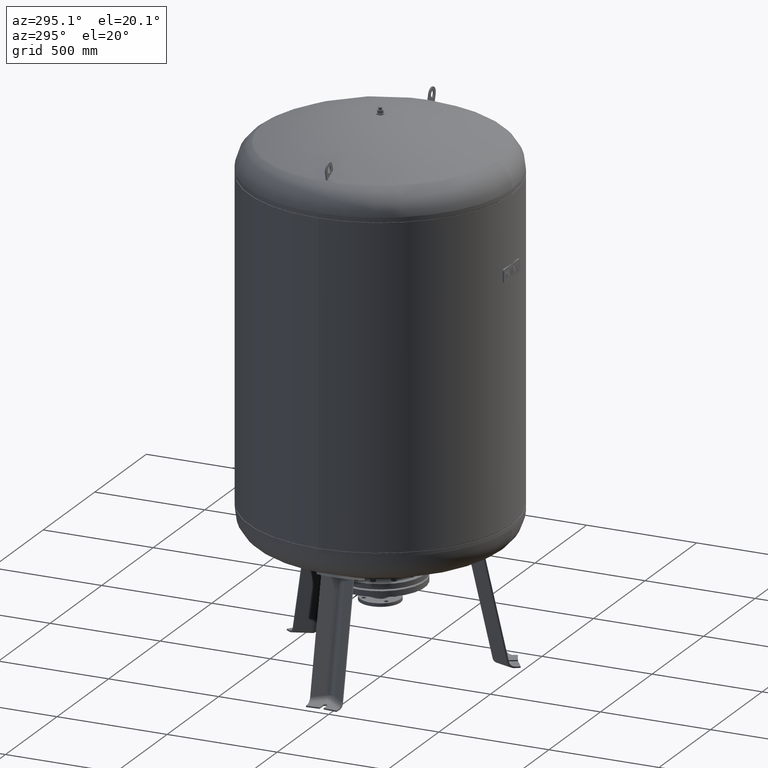
[diagram: clean part render]
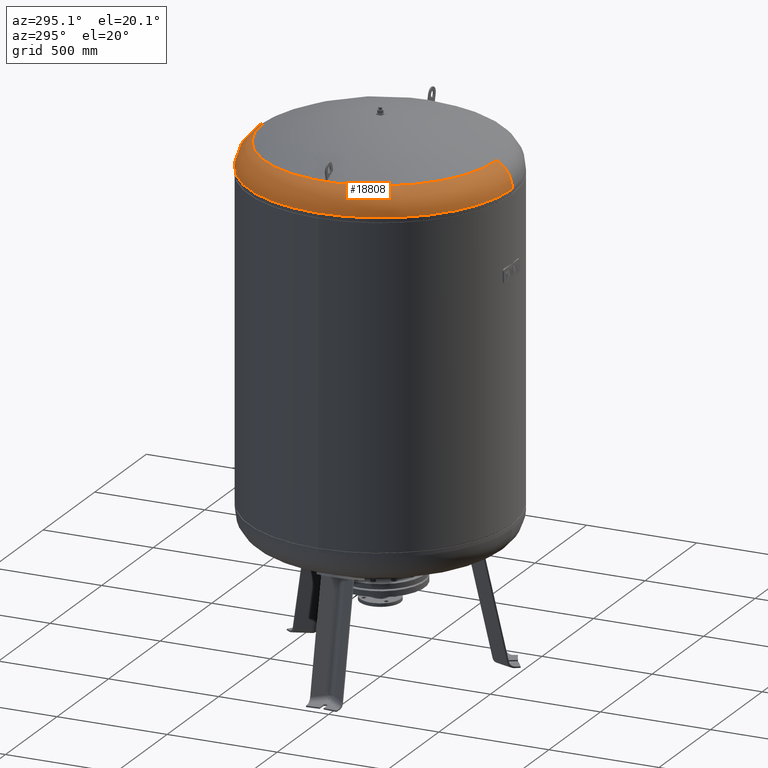
[diagram: same view with one face highlighted and labeled with its STEP entity id]
A machine part, auxiliary view. The second image highlights one B-rep face of the part: STEP entity #18808.
In plain terms, the highlighted toroidal blend (fillet) surface has major radius 473 mm and minor (blend) radius 127 mm.
Its self-contained STEP definition (entity closure, byte-faithful):
#18187=CARTESIAN_POINT('',(-599.999999999999890,3.010780E-014,2182.912457433727500));
#18188=VERTEX_POINT('',#18187);
#18195=CARTESIAN_POINT('',(1.156183E-013,600.0,2182.912457433727500));
#18196=VERTEX_POINT('',#18195);
#18197=CARTESIAN_POINT('',(6.604942E-015,-4.336858E-014,2182.912457433727500));
#18198=DIRECTION('',(0.0,0.0,-1.0));
#18199=DIRECTION('',(1.0,0.0,0.0));
#18200=AXIS2_PLACEMENT_3D('',#18197,#18198,#18199);
#18201=CIRCLE('',#18200,600.0);
#18202=EDGE_CURVE('',#18188,#18196,#18201,.T.);
#18219=CARTESIAN_POINT('',(4.214189E-014,-600.0,2182.912457433727500));
#18220=VERTEX_POINT('',#18219);
#18221=CARTESIAN_POINT('',(3.894773E-014,-528.621296296296240,2297.084570483804800));
#18222=VERTEX_POINT('',#18221);
#18223=CARTESIAN_POINT('',(4.214189E-014,-472.999999999999940,2182.912457433727500));
#18224=DIRECTION('',(-1.0,0.0,0.0));
#18225=DIRECTION('',(0.0,-1.0,0.0));
#18226=AXIS2_PLACEMENT_3D('',#18223,#18224,#18225);
#18227=CIRCLE('',#18226,127.000000000000010);
#18228=EDGE_CURVE('',#18220,#18222,#18227,.T.);
#18238=CARTESIAN_POINT('',(1.036830E-013,528.621296296296240,2297.084570483804800));
#18239=VERTEX_POINT('',#18238);
#18240=CARTESIAN_POINT('',(1.000658E-013,472.999999999999830,2182.912457433727500));
#18241=DIRECTION('',(1.0,0.0,0.0));
#18242=DIRECTION('',(0.0,1.0,0.0));
#18243=AXIS2_PLACEMENT_3D('',#18240,#18241,#18242);
#18244=CIRCLE('',#18243,127.000000000000010);
#18245=EDGE_CURVE('',#18196,#18239,#18244,.T.);
#18780=CARTESIAN_POINT('',(3.410787E-015,-2.239550E-014,2297.084570483804800));
#18781=DIRECTION('',(0.0,0.0,-1.0));
#18782=DIRECTION('',(1.0,0.0,0.0));
#18783=AXIS2_PLACEMENT_3D('',#18780,#18781,#18782);
#18784=CIRCLE('',#18783,528.621296296296240);
#18785=EDGE_CURVE('',#18222,#18239,#18784,.T.);
#18790=CARTESIAN_POINT('',(4.214189E-014,-4.336858E-014,2182.912457433727500));
#18791=DIRECTION('',(2.797667E-017,-1.836970E-016,-1.0));
#18792=DIRECTION('',(0.0,-1.0,0.0));
#18793=AXIS2_PLACEMENT_3D('',#18790,#18791,#18792);
#18794=TOROIDAL_SURFACE('',#18793,472.999999999999890,127.000000000000010);
#18795=ORIENTED_EDGE('',*,*,#18228,.T.);
#18796=ORIENTED_EDGE('',*,*,#18785,.T.);
#18797=ORIENTED_EDGE('',*,*,#18245,.F.);
#18798=ORIENTED_EDGE('',*,*,#18202,.F.);
#18799=CARTESIAN_POINT('',(6.604942E-015,-4.336858E-014,2182.912457433727500));
#18800=DIRECTION('',(0.0,0.0,-1.0));
#18801=DIRECTION('',(1.0,0.0,0.0));
#18802=AXIS2_PLACEMENT_3D('',#18799,#18800,#18801);
#18803=CIRCLE('',#18802,600.0);
#18804=EDGE_CURVE('',#18220,#18188,#18803,.T.);
#18805=ORIENTED_EDGE('',*,*,#18804,.F.);
#18806=EDGE_LOOP('',(#18795,#18796,#18797,#18798,#18805));
#18807=FACE_OUTER_BOUND('',#18806,.T.);
#18808=ADVANCED_FACE('',(#18807),#18794,.T.);